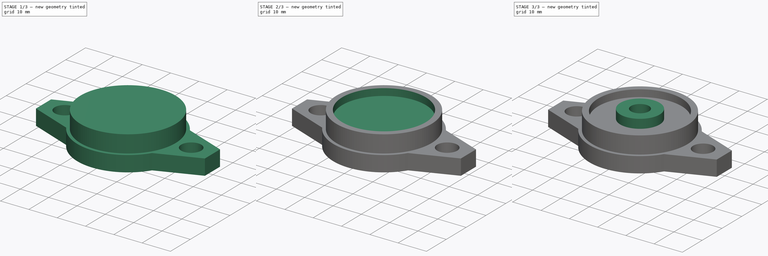
[diagram: build sequence overview — one tinted view per stage of 3, left to right]
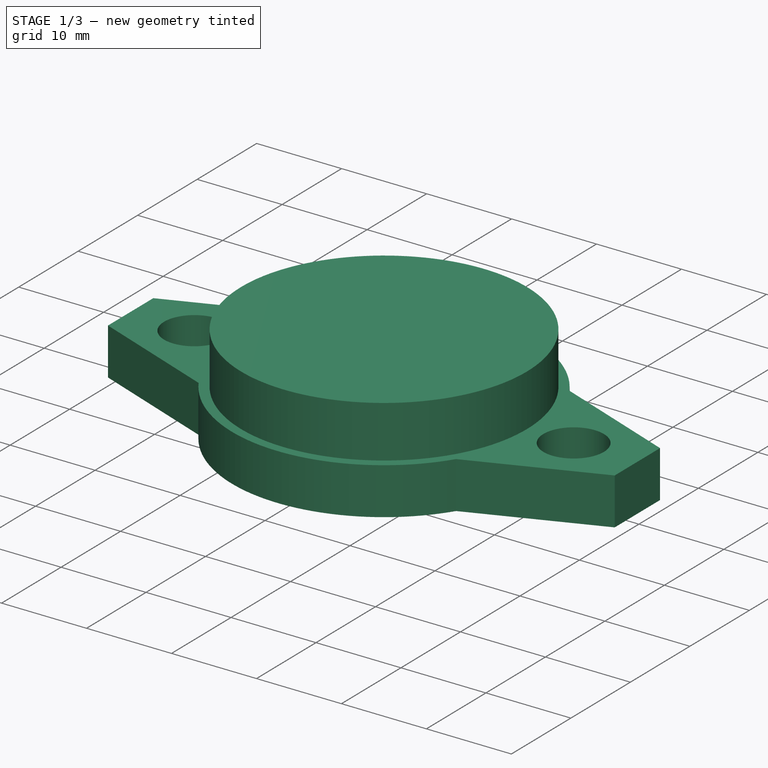
[diagram: stage 1 of 3 — iso view after this stage's code; geometry added in this stage tinted green]
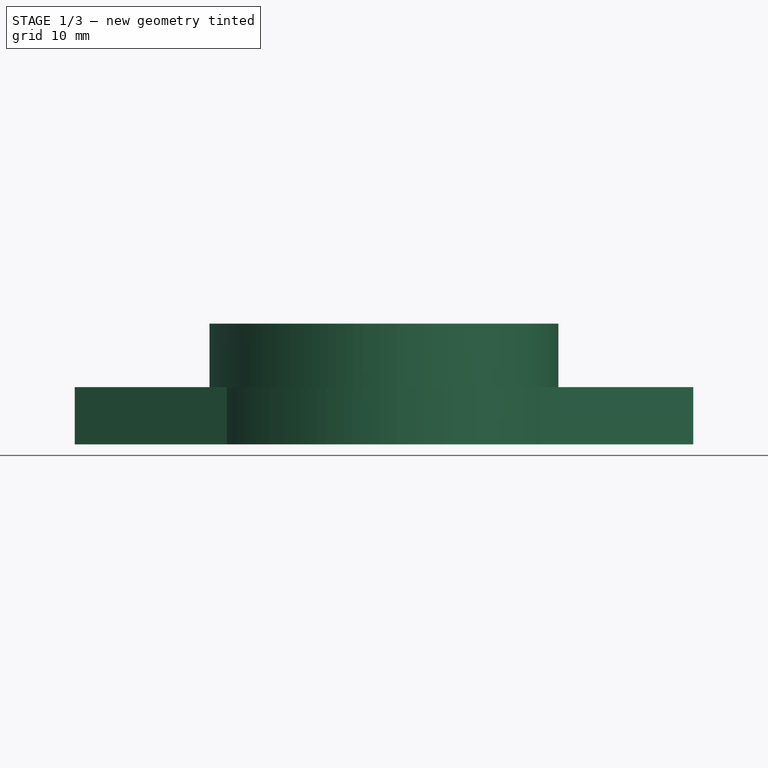
[diagram: stage 1 of 3 — front view after this stage's code; geometry added in this stage tinted green]
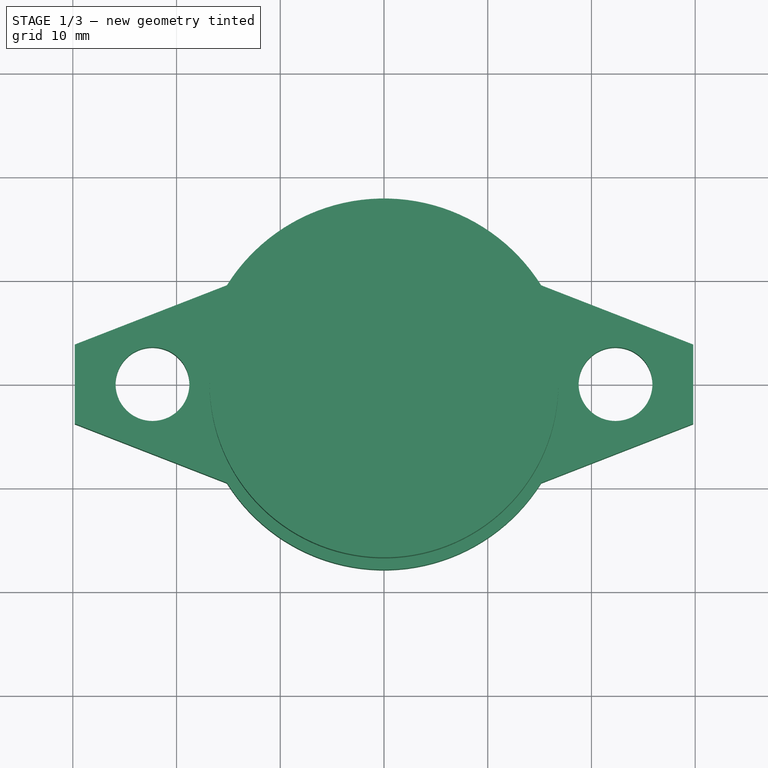
[diagram: stage 1 of 3 — top view after this stage's code; geometry added in this stage tinted green]
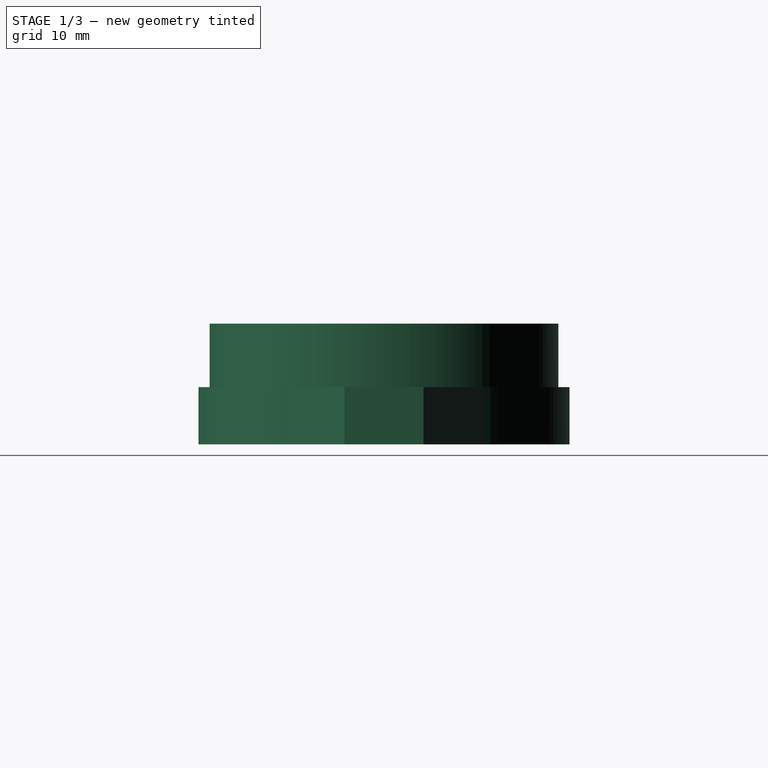
[diagram: stage 1 of 3 — right view after this stage's code; geometry added in this stage tinted green]
FCSTD DOCUMENT  (FreeCAD 0.15R4671 (Git))
Label: 1_4_bearing
License: All rights reserved
LicenseURL: http://en.wikipedia.org/wiki/All_rights_reserved
objects: Sketcher::SketchObject×5, PartDesign::Pad×3, PartDesign::Pocket×2
note: 15 computed .brp shape members not serialized (recipe doc carries the construction recipe); baked Part::Feature solids carry a one-line shape summary decoded from their .brp

FEATURE [Sketcher::SketchObject] Sketch
  sketch-geometry (21):
    g0: ArcOfCircle CenterX=0 CenterY=0 CenterZ=0 NormalX=0 NormalY=0 NormalZ=1 Radius=17.8943 StartAngle=3.7029 EndAngle=5.72188
    g1: Circle CenterX=22.3203 CenterY=0 CenterZ=0 NormalX=0 NormalY=0 NormalZ=1 Radius=3.55854
    g2: Circle CenterX=-22.3203 CenterY=0 CenterZ=0 NormalX=0 NormalY=0 NormalZ=1 Radius=3.55854
    g3: LineSegment [constr] StartX=0 StartY=0 StartZ=0 EndX=22.3203 EndY=0 EndZ=0
    g4: LineSegment [constr] StartX=0 StartY=0 StartZ=0 EndX=-22.3203 EndY=0 EndZ=0
    g5: LineSegment [constr] StartX=22.3203 StartY=0 StartZ=0 EndX=29.8196 EndY=0 EndZ=0
    g6: LineSegment [constr] StartX=-29.8196 StartY=0 StartZ=0 EndX=-22.3203 EndY=0 EndZ=0
    g7: LineSegment StartX=29.8196 StartY=3.81 StartZ=0 EndX=29.8196 EndY=-3.81 EndZ=0
    g8: GeomPoint [constr] X=29.8196 Y=0 Z=0
    g9: LineSegment StartX=-29.8196 StartY=3.81 StartZ=0 EndX=-29.8196 EndY=-3.81 EndZ=0
    g10: GeomPoint [constr] X=-29.8196 Y=0 Z=0
    g11: LineSegment [constr] StartX=-15.1486 StartY=9.525 StartZ=0 EndX=-15.1486 EndY=0 EndZ=0
    g12: LineSegment [constr] StartX=-15.1486 StartY=0 StartZ=0 EndX=-15.1486 EndY=-9.525 EndZ=0
    g13: LineSegment [constr] StartX=15.1486 StartY=9.525 StartZ=0 EndX=15.1486 EndY=0 EndZ=0
    g14: LineSegment [constr] StartX=15.1486 StartY=0 StartZ=0 EndX=15.1486 EndY=-9.525 EndZ=0
    g15: LineSegment StartX=-29.8196 StartY=3.81 StartZ=0 EndX=-15.1486 EndY=9.525 EndZ=0
    g16: LineSegment StartX=-29.8196 StartY=-3.81 StartZ=0 EndX=-15.1486 EndY=-9.525 EndZ=0
    g17: LineSegment StartX=29.8196 StartY=3.81 StartZ=0 EndX=15.1486 EndY=9.525 EndZ=0
    g18: LineSegment StartX=29.8196 StartY=-3.81 StartZ=0 EndX=15.1486 EndY=-9.525 EndZ=0
    g19: ArcOfCircle CenterX=0 CenterY=0 CenterZ=0 NormalX=0 NormalY=0 NormalZ=1 Radius=17.8943 StartAngle=0.561306 EndAngle=2.58029
    g20: Circle CenterX=0 CenterY=0 CenterZ=0 NormalX=0 NormalY=0 NormalZ=1 Radius=3.1877
  constraints (57):
    c: Radius(g0) = 17.8943
    c: Equal(g2,g1)
    c: Radius(g2) = 3.55854
    c: Horizontal(g3)
    c: DistanceX(g3) = 22.3203
    c: Horizontal(g4)
    c: Equal(g4,g3)
    c: Coincident(g2,g4)
    c: Coincident(g1,g3)
    c: Horizontal(g5)
    c: DistanceX(g5) = 7.49935
    c: Horizontal(g6)
    c: Equal(g6,g5)
    c: Coincident(g6,g2)
    c: Coincident(g5,g1)
    c: Vertical(g7)
    c: DistanceY(g7) = -7.62
    c: PointOnObject(g8,g7)
    c: Symmetric(g7,g7,g8)
    c: Coincident(g8,g5)
    c: Vertical(g9)
    c: Equal(g9,g7)
    c: PointOnObject(g10,g9)
    c: Symmetric(g9,g9,g10)
    c: Coincident(g0,g-1)
    c: Coincident(g3,g-1)
    c: Coincident(g4,g-1)
    c: Coincident(g10,g6)
    c: PointOnObject(g15,g0)
    c: PointOnObject(g11,g4)
    c: Vertical(g11)
    c: DistanceY(g11,g15) = 9.525
    c: PointOnObject(g12,g4)
    c: PointOnObject(g12,g0)
    c: Vertical(g12)
    c: Coincident(g12,g11)
    c: PointOnObject(g13,g0)
    c: PointOnObject(g13,g3)
    c: Vertical(g13)
    c: Equal(g13,g11)
    c: Coincident(g14,g13)
    c: PointOnObject(g18,g0)
    c: Vertical(g14)
    c: Coincident(g15,g9)
    c: Coincident(g16,g9)
    c: Coincident(g16,g12)
    c: Coincident(g17,g13)
    c: Coincident(g17,g7)
    c: Coincident(g18,g7)
    c: PointOnObject(g19,g11)
    c: PointOnObject(g0,g16)
    c: Equal(g0,g19)
    c: Coincident(g0,g14)
    c: Coincident(g0,g19)
    c: PointOnObject(g19,g13)
    c: Radius(g20) = 3.1877
    c: Coincident(g20,g-1)
FEATURE [PartDesign::Pad] Pad
  Length = 5.5245
  Length2 = 100
  Sketch = -> Sketch
  Type = 0
FEATURE [Sketcher::SketchObject] Sketch001
  Placement = pos=(0,0,5.5245) rot=(0,0,1;0rad)
  Support = -> Pad [Face13]
  sketch-geometry (1):
    g0: Circle CenterX=0 CenterY=0 CenterZ=0 NormalX=0 NormalY=0 NormalZ=1 Radius=16.8173
  constraints (2):
    c: Radius(g0) = 16.8173
    c: Coincident(g0,g-1)
FEATURE [PartDesign::Pad] Pad001
  Length = 6.1214
  Length2 = 100
  Sketch = -> Sketch001
  Type = 0
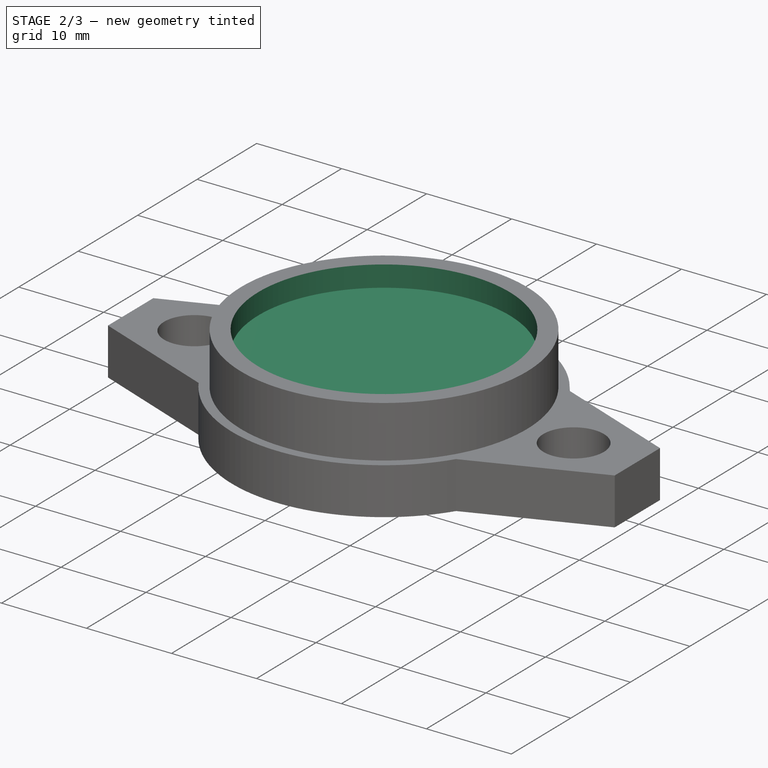
[diagram: stage 2 of 3 — iso view after this stage's code; geometry added in this stage tinted green]
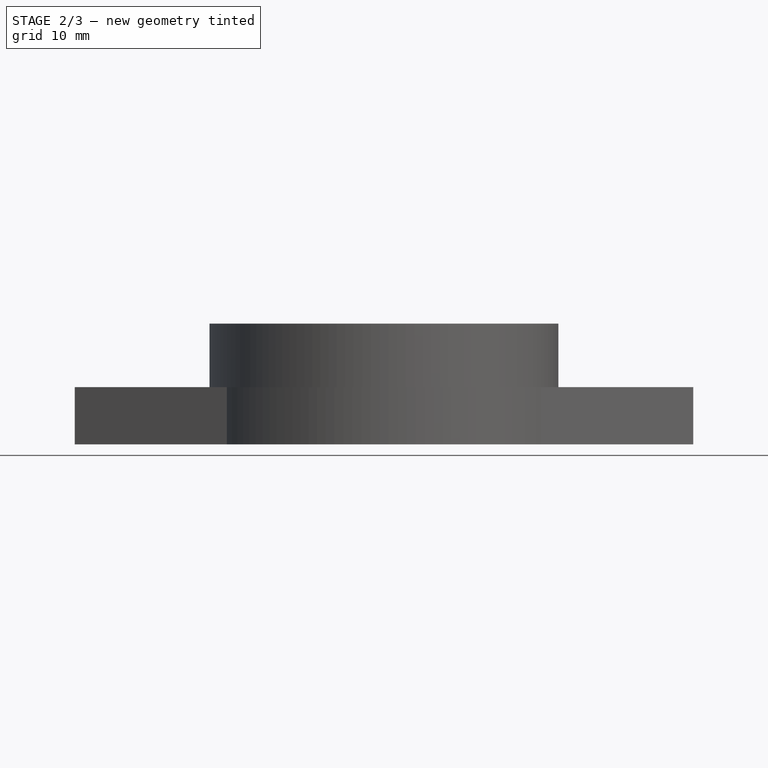
[diagram: stage 2 of 3 — front view after this stage's code; geometry added in this stage tinted green]
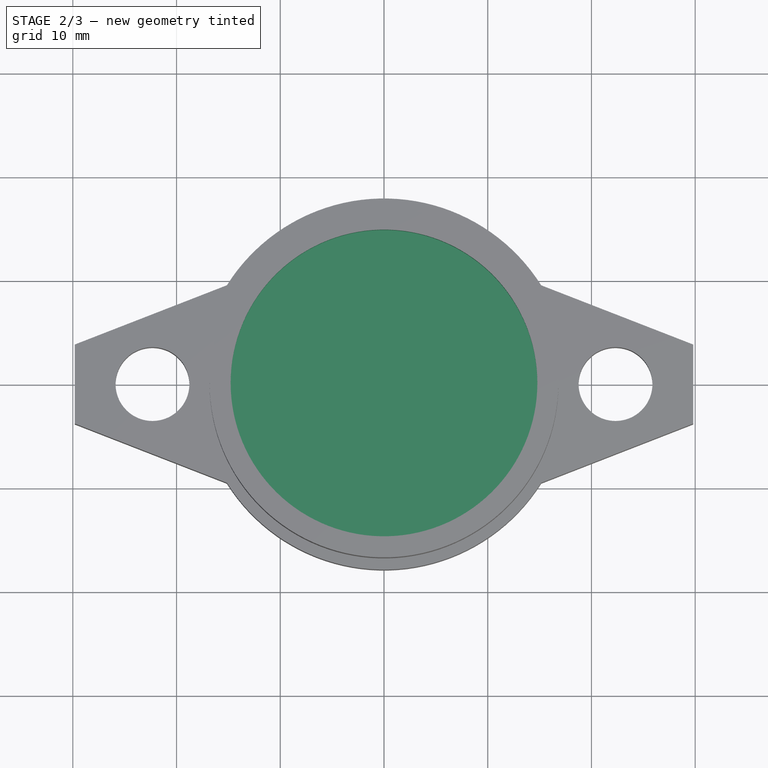
[diagram: stage 2 of 3 — top view after this stage's code; geometry added in this stage tinted green]
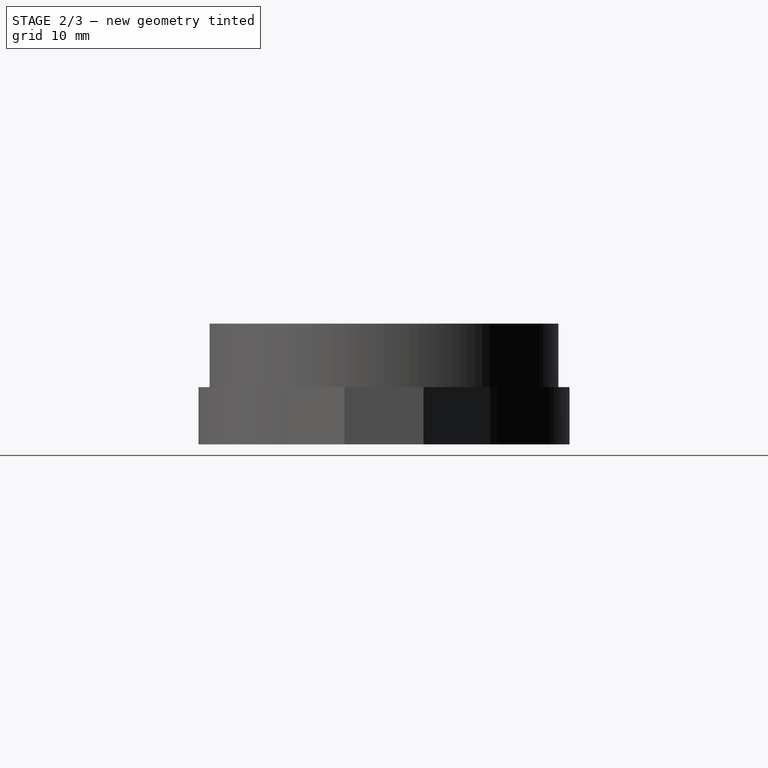
[diagram: stage 2 of 3 — right view after this stage's code; geometry added in this stage tinted green]
FEATURE [Sketcher::SketchObject] Sketch002
  Placement = pos=(0,0,11.6459) rot=(0,0,1;0rad)
  Support = -> Pad001 [Face16]
  sketch-geometry (1):
    g0: Circle CenterX=0 CenterY=0 CenterZ=0 NormalX=0 NormalY=0 NormalZ=1 Radius=14.7853
  constraints (2):
    c: Radius(g0) = 14.7853
    c: Coincident(g0,g-1)
FEATURE [PartDesign::Pocket] Pocket
  Length = 2.4765
  Sketch = -> Sketch002
  Type = 0
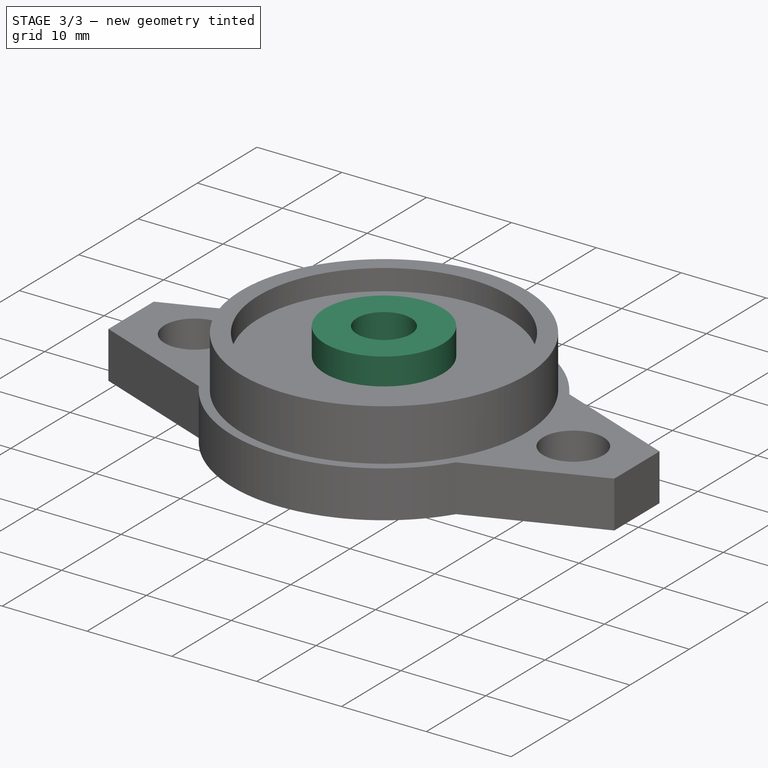
[diagram: stage 3 of 3 — iso view after this stage's code; geometry added in this stage tinted green]
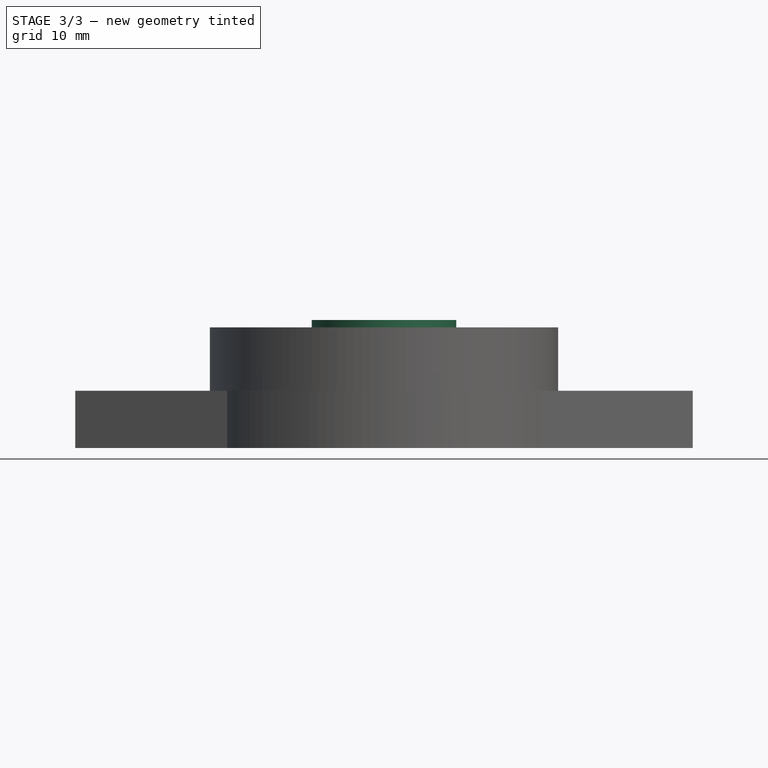
[diagram: stage 3 of 3 — front view after this stage's code; geometry added in this stage tinted green]
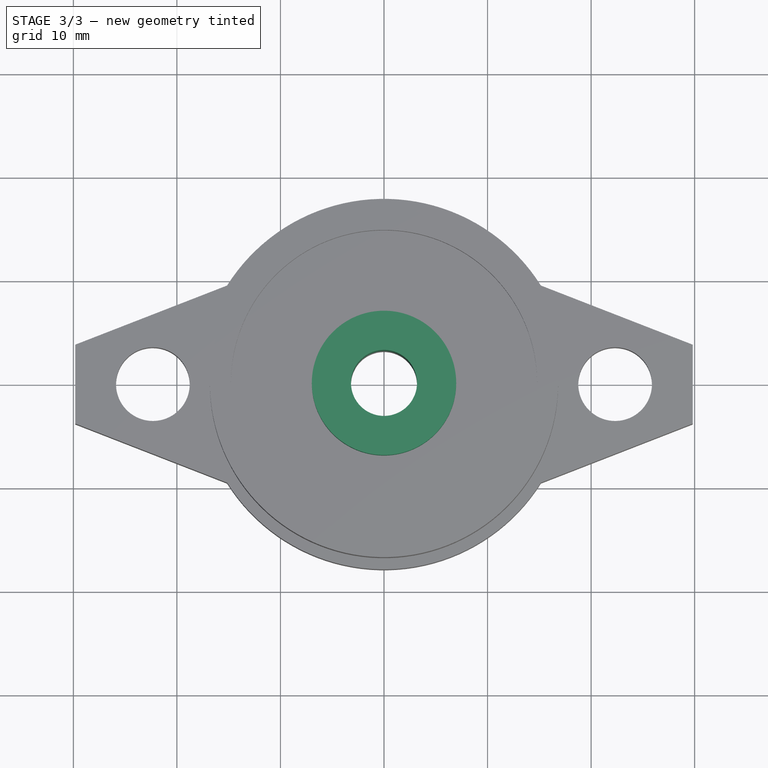
[diagram: stage 3 of 3 — top view after this stage's code; geometry added in this stage tinted green]
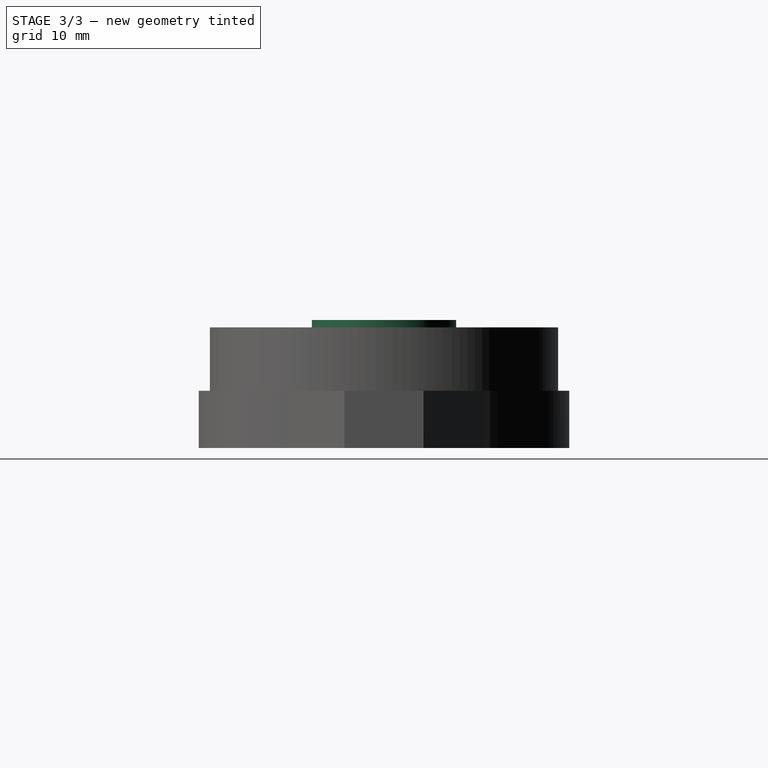
[diagram: stage 3 of 3 — right view after this stage's code; geometry added in this stage tinted green]
FEATURE [Sketcher::SketchObject] Sketch003
  Placement = pos=(0,0,9.1694) rot=(0,0,1;0rad)
  Support = -> Pocket [Face18]
  sketch-geometry (1):
    g0: Circle CenterX=0 CenterY=0 CenterZ=0 NormalX=0 NormalY=0 NormalZ=1 Radius=6.9723
  constraints (2):
    c: Radius(g0) = 6.9723
    c: Coincident(g0,g-1)
FEATURE [PartDesign::Pad] Pad002
  Length = 3.1877
  Length2 = 100
  Sketch = -> Sketch003
  Type = 0
FEATURE [Sketcher::SketchObject] Sketch004
  Placement = pos=(0,0,12.3571) rot=(0,0,1;0rad)
  Support = -> Pad002 [Face20]
  sketch-geometry (1):
    g0: Circle CenterX=0 CenterY=0 CenterZ=0 NormalX=0 NormalY=0 NormalZ=1 Radius=3.1877
  constraints (2):
    c: Radius(g0) = 3.1877
    c: Coincident(g0,g-1)
FEATURE [PartDesign::Pocket] Pocket001
  Length = 4.99999
  Sketch = -> Sketch004
  Type = 1
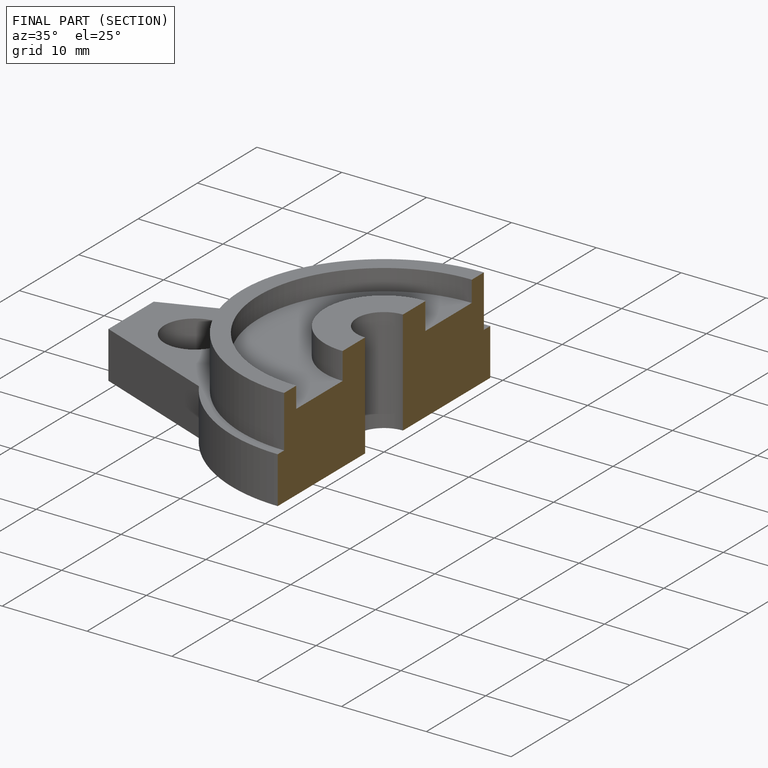
[diagram: finished part — half-section view (interior)]
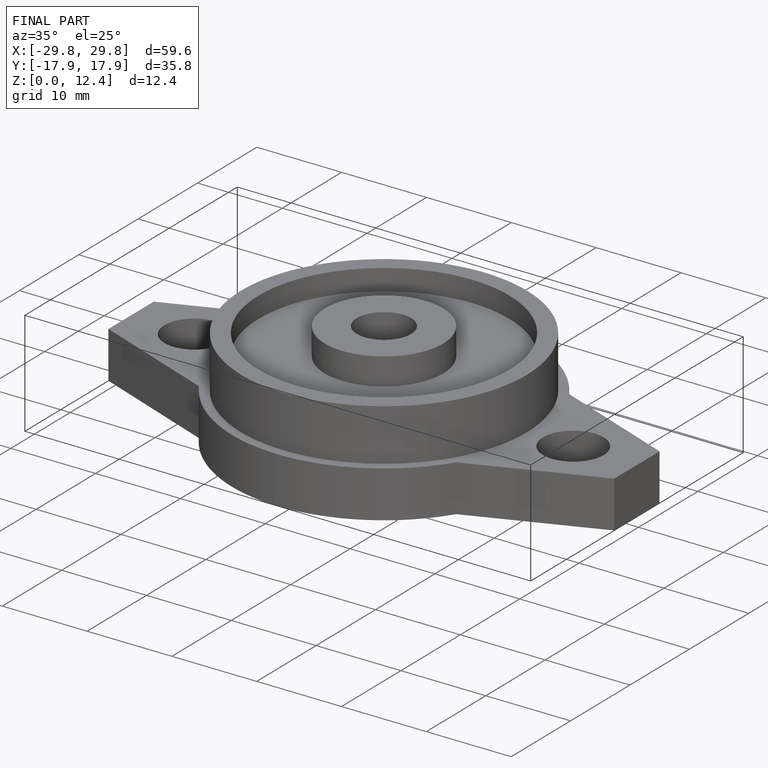
[diagram: finished part — iso view with bounding-box wireframe]
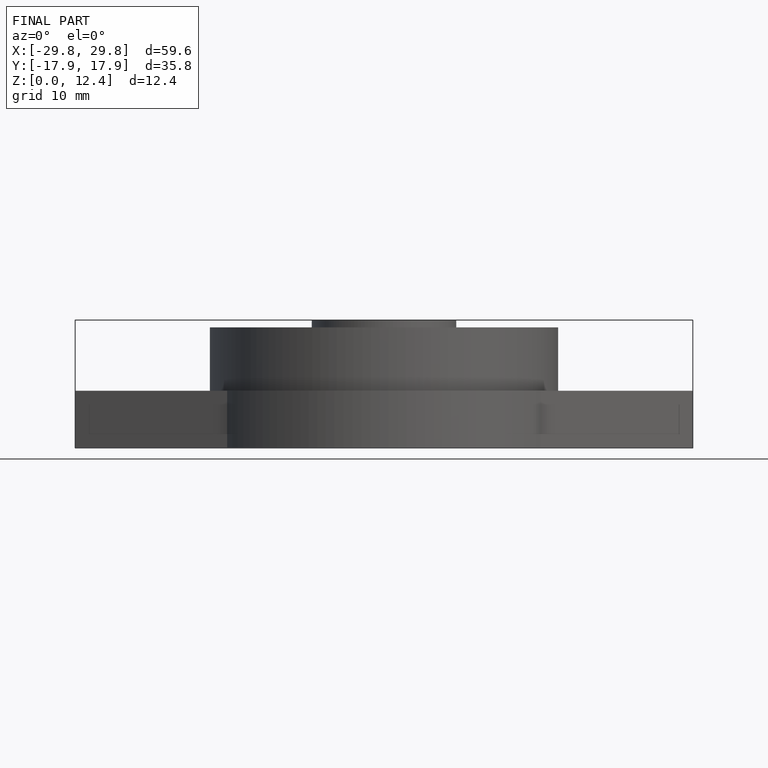
[diagram: finished part — front view with bounding-box wireframe]
